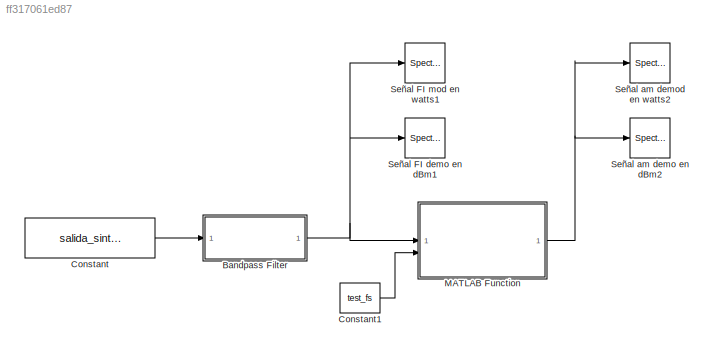
MODEL slx_ff317061ed87
KIND model
CONFIG AbsTol = auto
CONFIG EnableMultiTasking = off
CONFIG FixedStep = auto
CONFIG MaxStep = auto
CONFIG MinStep = auto
CONFIG RelTol = 1e-3
CONFIG SampleTimeConstraint = Unconstrained
CONFIG SolverName = VariableStepAuto
CONFIG StartTime = 0.0
CONFIG StopTime = 0.1
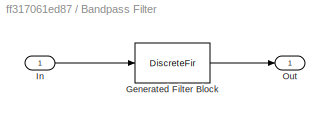
BLOCK [SubSystem] Bandpass Filter
  CopyFcn = fdesignblkfcn(gcbh, {'CopyFcn'});
  DialogController = fdesignblkfcn
  InitFcn = fdesignblkfcn(gcbh, {'InitFcn'});
  UserDataPersistent = on
BLOCK [DiscreteFir] Bandpass Filter/Generated Filter Block
  Coefficients = [-1.1273741661103097e-05 -0.000561993375017939118 -8.62359604901059074e-06 -7.50691451952865943e-06 7.81285012600206921e-06 2.00315466230824187e-05 2.45542488551999855e-05 1.96579514985156776e-05 7.23640037101240103e-06 -7.77377859031782842e-06 -1.95786442923720696e-05 -2.36211150463387239e-05 -1.85928598378592355e-05 -6.64846825538893349e-06 7.29488094785432066e-06 1.78537303848593843e-05 2.10687...<+104961ch>
  InputPortMap = u0
  InputProcessing = Columns as channels (frame based)
  OutputPortMap = o0
  Tag = BlockMethodSubSystem
BLOCK [Inport] Bandpass Filter/In
BLOCK [Outport] Bandpass Filter/Out
  VectorParamsAs1DForOutWhenUnconnected = off
BLOCK [Constant] Constant
  SampleTime = test_ts
  Value = salida_sintonizador_fc1
BLOCK [Constant] Constant1
  SampleTime = test_ts
  Value = test_fs
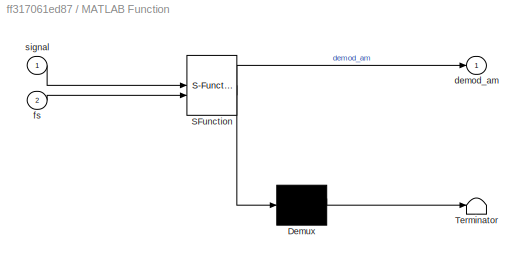
BLOCK [SubSystem] MATLAB Function
  ErrorFcn = Stateflow.Translate.translate
  PermitHierarchicalResolution = ExplicitOnly
  SFBlockType = MATLAB Function
  TreatAsAtomicUnit = on
BLOCK [Demux] MATLAB Function/ Demux 
  Outputs = 1
BLOCK [S-Function] MATLAB Function/ SFunction 
  EnableBusSupport = on
  FunctionName = sf_sfun
  PortCounts = [2 2]
  SFcnIsStateOwnerBlock = off
  SFunctionDeploymentMode = off
  Tag = Stateflow S-Function 2
BLOCK [Terminator] MATLAB Function/ Terminator 
BLOCK [Outport] MATLAB Function/demod_am
BLOCK [Inport] MATLAB Function/fs
  Port = 2
BLOCK [Inport] MATLAB Function/signal
BLOCK [SpectrumAnalyzer] Señal FI demo en dBm1
  GraphicalSettings = {"GraphicalSettings":{"Style":{"BackgroundColor":[0.12941176470588237,0.12941176470588237,0.12941176470588237],"AxesColor":[0.07058823529411765,0.07058823529411765,0.07058823529411765],"LabelsColor":[0.8509803921568627,0.8509803921568627,0.8509803921568627],"PreserveColors":false,"Visible":[true],"LineStyle":["-"],"LineColor":[[1,1,0.06666666666666667]],"LineWidth":[1.5],"Marker":["none"],"FontSiz...<+929ch>  <repeated x4 — deduplicated; at blocks: Señal FI demo en dBm1, Señal FI mod en watts1, Señal am demo en dBm2, Señal am demod en watts2>
  OpenAtSimulationStart = off
  SampleRate = 44.1e3
  ScopeFrameLocation = window
  SelectedToolstripTab = spectrumAnalyzerToolstrip.spectrumTab
  ShowLegend = on
  StartFrequency = 20
  StopFrequency = 20e3
  WasSavedAsWebScope = on
  WindowPosition = [1.000000,1.000000,1920.000000,1057.000000,]
  YLimits = [-108.62580061,38.40656003]
BLOCK [SpectrumAnalyzer] Señal FI mod en watts1
  OpenAtSimulationStart = off
  SampleRate = 44.1e3
  ScopeFrameLocation = window
  SelectedToolstripTab = spectrumAnalyzerToolstrip.spectrumTab
  ShowLegend = on
  SpectrumUnits = Watts
  StartFrequency = 20
  StopFrequency = 20e3
  WasSavedAsWebScope = on
  WindowPosition = [1.000000,1.000000,1920.000000,1057.000000,]
  YLimits = [-0.0293253,0.26392767]
BLOCK [SpectrumAnalyzer] Señal am demo en dBm2
  OpenAtSimulationStart = off
  SampleRate = 44.1e3
  ScopeFrameLocation = window
  SelectedToolstripTab = spectrumAnalyzerToolstrip.spectrumTab
  ShowLegend = on
  StartFrequency = 20
  StopFrequency = 20e3
  WasSavedAsWebScope = on
  WindowPosition = [1.000000,1.000000,1920.000000,1057.000000,]
  YLimits = [-108.62580061,38.40656003]
BLOCK [SpectrumAnalyzer] Señal am demod en watts2
  OpenAtSimulationStart = off
  SampleRate = 44.1e3
  ScopeFrameLocation = window
  SelectedToolstripTab = spectrumAnalyzerToolstrip.spectrumTab
  ShowLegend = on
  SpectrumUnits = Watts
  StartFrequency = 20
  StopFrequency = 20e3
  WasSavedAsWebScope = on
  WindowPosition = [1.000000,1.000000,1920.000000,1057.000000,]
  YLimits = [-0.0293253,0.26392767]
NET Bandpass Filter:1 -> MATLAB Function:1, Señal FI demo en dBm1:1, Señal FI mod en watts1:1
LINE Constant1:1 -> MATLAB Function:2
LINE Constant:1 -> Bandpass Filter:1
NET MATLAB Function:1 -> Señal am demo en dBm2:1, Señal am demod en watts2:1
note: NET lines group one-source signal fan-out (src -> all destinations, sorted); 1:1 wires keep LINE
CHART MATLAB Function states=1 transitions=1
  STATE_LABEL 'eML_blk_kernel()'
  STATE_LABEL "SCRIPT:\nfunction demod_am = am_demodulacion(signal, fs)\n    demod_am = signal .* cos(2*pi*148e3);\n    % demod_am = demod(signal, 148e3, fs, 'am');\nend"
CHART  states=0 transitions=0
